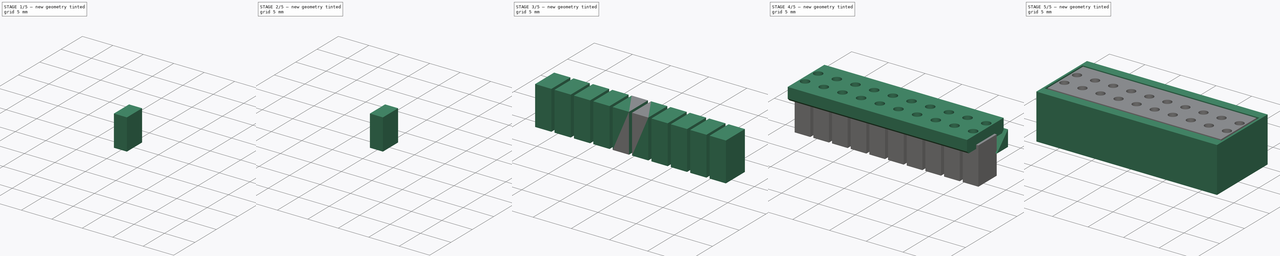
[diagram: build sequence overview — one tinted view per stage of 5, left to right]
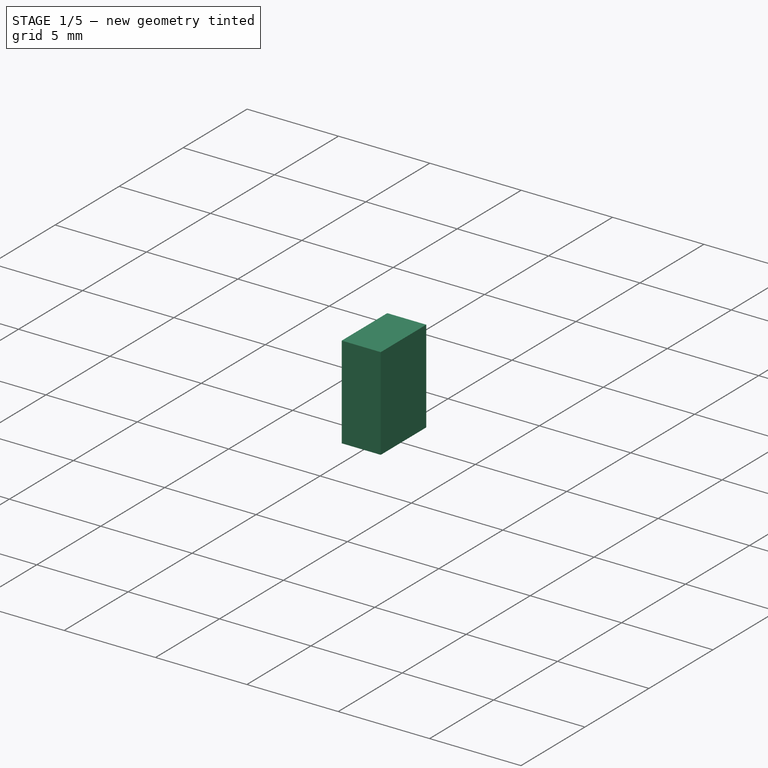
[diagram: stage 1 of 5 — iso view after this stage's code; geometry added in this stage tinted green]
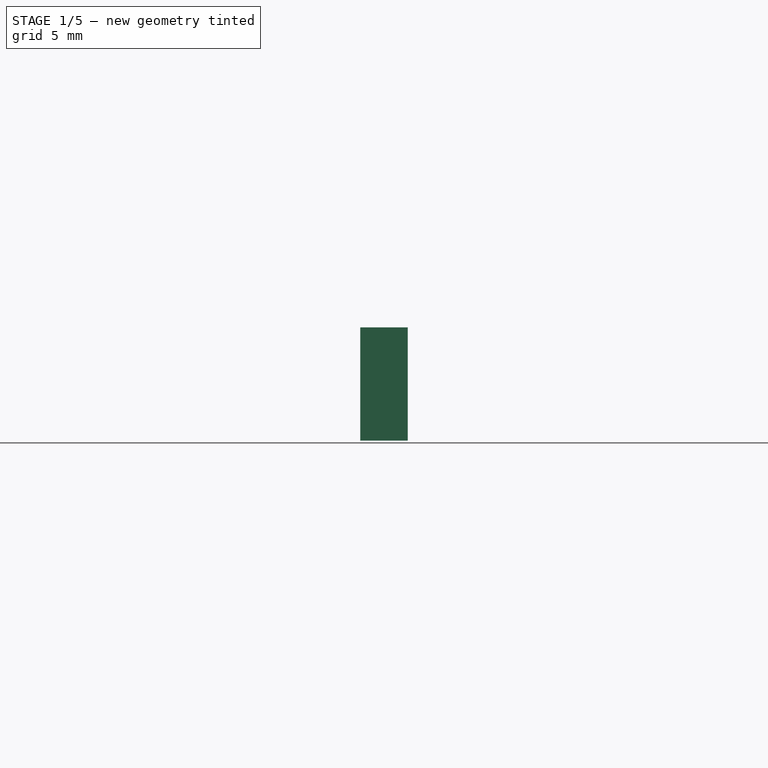
[diagram: stage 1 of 5 — front view after this stage's code; geometry added in this stage tinted green]
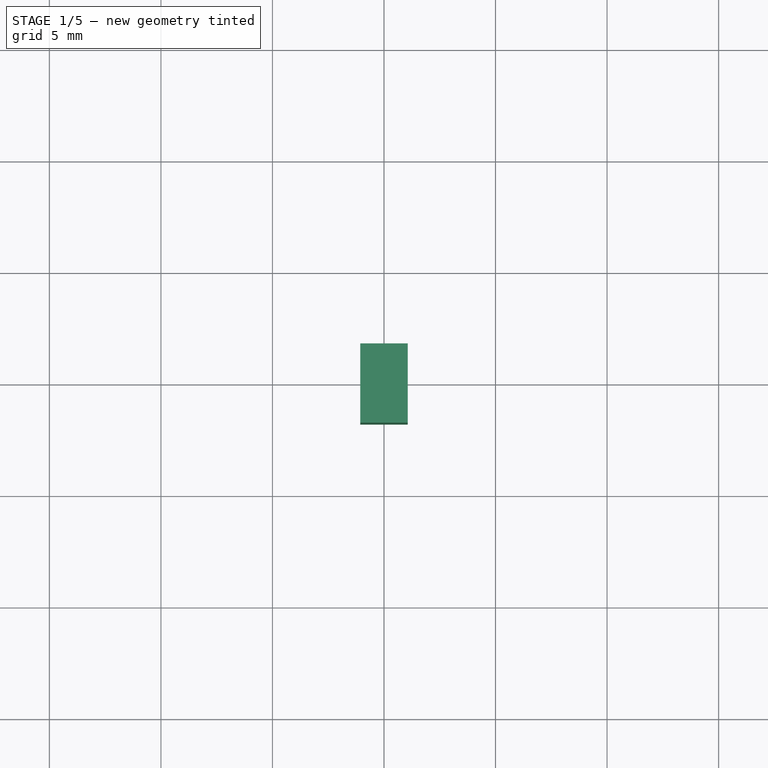
[diagram: stage 1 of 5 — top view after this stage's code; geometry added in this stage tinted green]
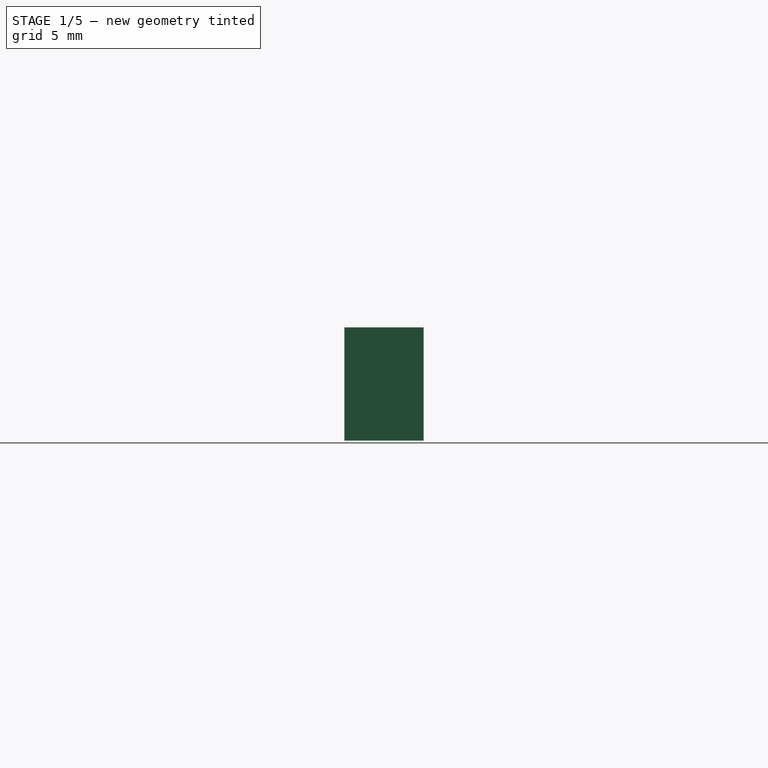
[diagram: stage 1 of 5 — right view after this stage's code; geometry added in this stage tinted green]
FCSTD DOCUMENT  (FreeCAD 0.18.4R)
Label: 10-seg-led-graph
License: All rights reserved
LicenseURL: http://en.wikipedia.org/wiki/All_rights_reserved
objects: Sketcher::SketchObject×15, PartDesign::Pad×15, PartDesign::Body×15, Part::Cut×3, Part::MultiFuse×1
note: 64 computed .brp shape members not serialized (recipe doc carries the construction recipe); baked Part::Feature solids carry a one-line shape summary decoded from their .brp

FEATURE [PartDesign::Body] Body010  label="LED005"
  Group = -> [Sketch010,Pad010]
  Origin = -> Origin010
  Placement = pos=(-6.35,0,0) rot=(0,0,1;0rad)
  Tip = -> Pad010
FEATURE [Sketcher::SketchObject] Sketch011
  MapMode = 5
  Support = -> [XY_Plane011]
  sketch-geometry (4):
    g0: LineSegment StartX=-1.0668 StartY=1.778 StartZ=0 EndX=1.0668 EndY=1.778 EndZ=0
    g1: LineSegment StartX=1.0668 StartY=1.778 StartZ=0 EndX=1.0668 EndY=-1.778 EndZ=0
    g2: LineSegment StartX=1.0668 StartY=-1.778 StartZ=0 EndX=-1.0668 EndY=-1.778 EndZ=0
    g3: LineSegment StartX=-1.0668 StartY=-1.778 StartZ=0 EndX=-1.0668 EndY=1.778 EndZ=0
  constraints (10):
    c: Coincident(g0,g1)
    c: Coincident(g1,g2)
    c: Coincident(g2,g3)
    c: Coincident(g3,g0)
    c: Horizontal(g2)
    c: Vertical(g1)
    c: DistanceX(g0,g0) = 2.1336
    c: DistanceY(g3,g3) = 3.556
    c: Symmetric(g0,g0,g-2)
    c: Symmetric(g0,g2,g-1)
FEATURE [PartDesign::Pad] Pad011
  Length = 5.08
  Length2 = 99.9998
  Profile = -> Sketch011
  Type = 0
FEATURE [PartDesign::Body] Body011  label="LED006"
  Group = -> [Sketch011,Pad011]
  Origin = -> Origin011
  Placement = pos=(-8.89,0,0) rot=(0,0,1;0rad)
  Tip = -> Pad011
FEATURE [Sketcher::SketchObject] Sketch012
  MapMode = 5
  Support = -> [XY_Plane012]
  sketch-geometry (4):
    g0: LineSegment StartX=-1.0668 StartY=1.778 StartZ=0 EndX=1.0668 EndY=1.778 EndZ=0
    g1: LineSegment StartX=1.0668 StartY=1.778 StartZ=0 EndX=1.0668 EndY=-1.778 EndZ=0
    g2: LineSegment StartX=1.0668 StartY=-1.778 StartZ=0 EndX=-1.0668 EndY=-1.778 EndZ=0
    g3: LineSegment StartX=-1.0668 StartY=-1.778 StartZ=0 EndX=-1.0668 EndY=1.778 EndZ=0
  constraints (10):
    c: Coincident(g0,g1)
    c: Coincident(g1,g2)
    c: Coincident(g2,g3)
    c: Coincident(g3,g0)
    c: Horizontal(g2)
    c: Vertical(g1)
    c: DistanceX(g0,g0) = 2.1336
    c: DistanceY(g3,g3) = 3.556
    c: Symmetric(g0,g0,g-2)
    c: Symmetric(g0,g2,g-1)
FEATURE [PartDesign::Pad] Pad012
  Length = 5.08
  Length2 = 99.9998
  Profile = -> Sketch012
  Type = 0
FEATURE [PartDesign::Body] Body012  label="LED007"
  Group = -> [Sketch012,Pad012]
  Origin = -> Origin012
  Placement = pos=(8.89,0,0) rot=(0,0,1;0rad)
  Tip = -> Pad012
FEATURE [Sketcher::SketchObject] Sketch013
  MapMode = 5
  Support = -> [XY_Plane013]
  sketch-geometry (4):
    g0: LineSegment StartX=-1.0668 StartY=1.778 StartZ=0 EndX=1.0668 EndY=1.778 EndZ=0
    g1: LineSegment StartX=1.0668 StartY=1.778 StartZ=0 EndX=1.0668 EndY=-1.778 EndZ=0
    g2: LineSegment StartX=1.0668 StartY=-1.778 StartZ=0 EndX=-1.0668 EndY=-1.778 EndZ=0
    g3: LineSegment StartX=-1.0668 StartY=-1.778 StartZ=0 EndX=-1.0668 EndY=1.778 EndZ=0
  constraints (10):
    c: Coincident(g0,g1)
    c: Coincident(g1,g2)
    c: Coincident(g2,g3)
    c: Coincident(g3,g0)
    c: Horizontal(g2)
    c: Vertical(g1)
    c: DistanceX(g0,g0) = 2.1336
    c: DistanceY(g3,g3) = 3.556
    c: Symmetric(g0,g0,g-2)
    c: Symmetric(g0,g2,g-1)
FEATURE [PartDesign::Pad] Pad013
  Length = 5.08
  Length2 = 99.9998
  Profile = -> Sketch013
  Type = 0
FEATURE [PartDesign::Body] Body013  label="LED008"
  Group = -> [Sketch013,Pad013]
  Origin = -> Origin013
  Placement = pos=(-11.43,0,0) rot=(0,0,1;0rad)
  Tip = -> Pad013
FEATURE [Sketcher::SketchObject] Sketch014
  MapMode = 5
  Support = -> [XY_Plane014]
  sketch-geometry (4):
    g0: LineSegment StartX=-1.0668 StartY=1.778 StartZ=0 EndX=1.0668 EndY=1.778 EndZ=0
    g1: LineSegment StartX=1.0668 StartY=1.778 StartZ=0 EndX=1.0668 EndY=-1.778 EndZ=0
    g2: LineSegment StartX=1.0668 StartY=-1.778 StartZ=0 EndX=-1.0668 EndY=-1.778 EndZ=0
    g3: LineSegment StartX=-1.0668 StartY=-1.778 StartZ=0 EndX=-1.0668 EndY=1.778 EndZ=0
  constraints (10):
    c: Coincident(g0,g1)
    c: Coincident(g1,g2)
    c: Coincident(g2,g3)
    c: Coincident(g3,g0)
    c: Horizontal(g2)
    c: Vertical(g1)
    c: DistanceX(g0,g0) = 2.1336
    c: DistanceY(g3,g3) = 3.556
    c: Symmetric(g0,g0,g-2)
    c: Symmetric(g0,g2,g-1)
FEATURE [PartDesign::Pad] Pad014
  Length = 5.08
  Length2 = 99.9998
  Profile = -> Sketch014
  Type = 0
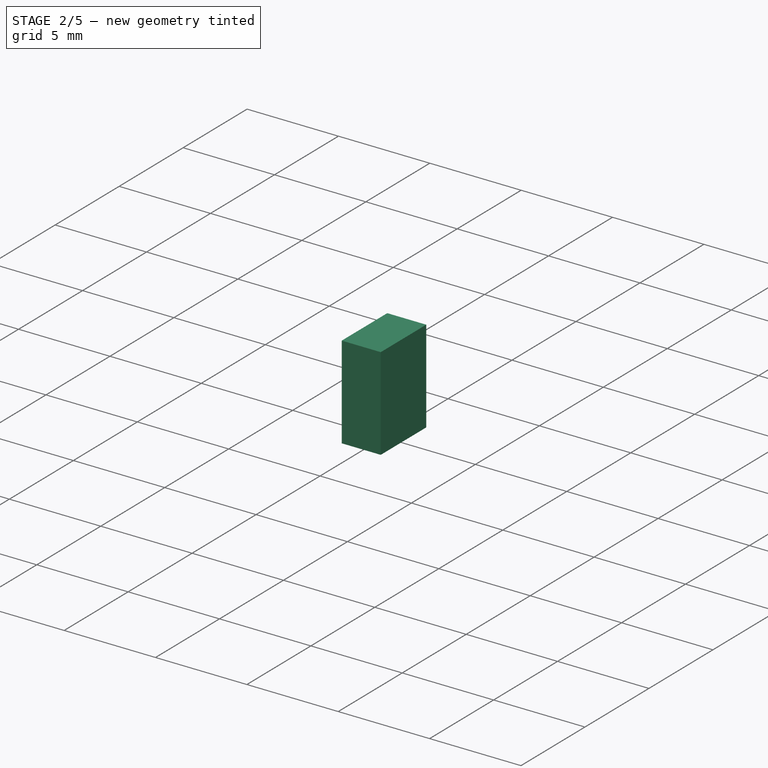
[diagram: stage 2 of 5 — iso view after this stage's code; geometry added in this stage tinted green]
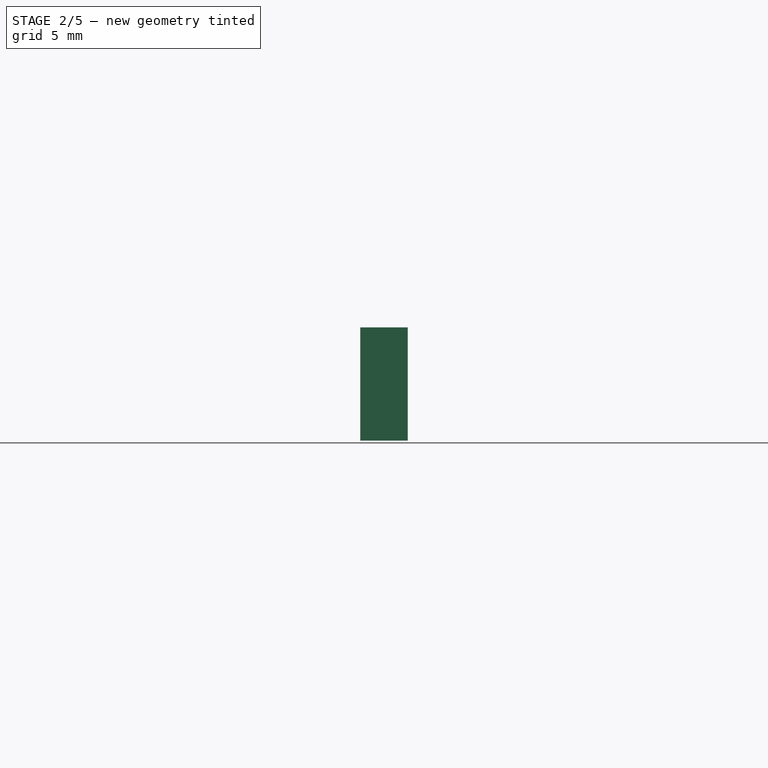
[diagram: stage 2 of 5 — front view after this stage's code; geometry added in this stage tinted green]
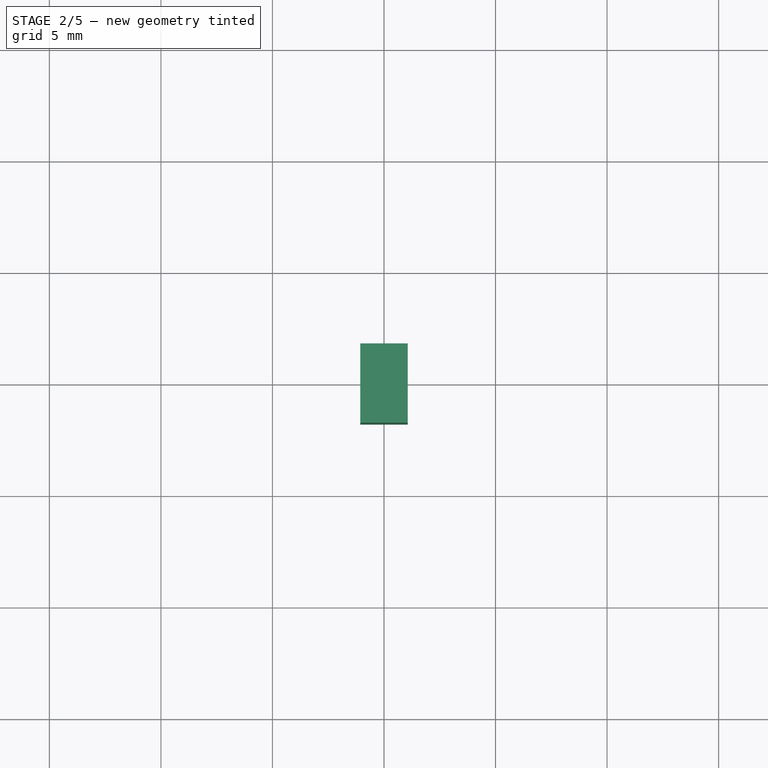
[diagram: stage 2 of 5 — top view after this stage's code; geometry added in this stage tinted green]
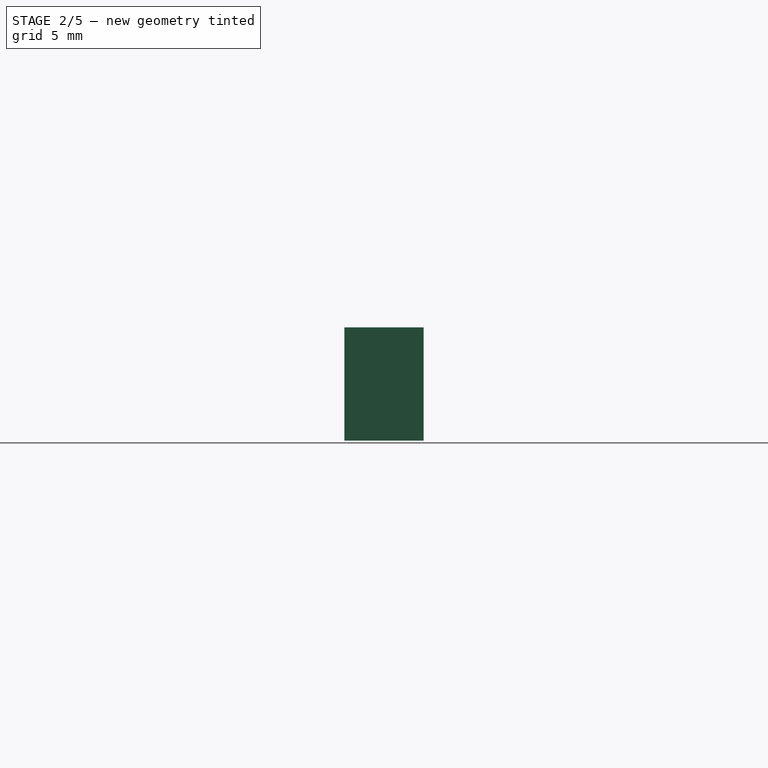
[diagram: stage 2 of 5 — right view after this stage's code; geometry added in this stage tinted green]
FEATURE [PartDesign::Body] Body006  label="LED001"
  Group = -> [Sketch006,Pad006]
  Origin = -> Origin006
  Placement = pos=(-1.27,0,0) rot=(0,0,1;0rad)
  Tip = -> Pad006
FEATURE [Sketcher::SketchObject] Sketch007
  MapMode = 5
  Support = -> [XY_Plane007]
  sketch-geometry (4):
    g0: LineSegment StartX=-1.0668 StartY=1.778 StartZ=0 EndX=1.0668 EndY=1.778 EndZ=0
    g1: LineSegment StartX=1.0668 StartY=1.778 StartZ=0 EndX=1.0668 EndY=-1.778 EndZ=0
    g2: LineSegment StartX=1.0668 StartY=-1.778 StartZ=0 EndX=-1.0668 EndY=-1.778 EndZ=0
    g3: LineSegment StartX=-1.0668 StartY=-1.778 StartZ=0 EndX=-1.0668 EndY=1.778 EndZ=0
  constraints (10):
    c: Coincident(g0,g1)
    c: Coincident(g1,g2)
    c: Coincident(g2,g3)
    c: Coincident(g3,g0)
    c: Horizontal(g2)
    c: Vertical(g1)
    c: DistanceX(g0,g0) = 2.1336
    c: DistanceY(g3,g3) = 3.556
    c: Symmetric(g0,g0,g-2)
    c: Symmetric(g0,g2,g-1)
FEATURE [PartDesign::Pad] Pad007
  Length = 5.08
  Length2 = 99.9998
  Profile = -> Sketch007
  Type = 0
FEATURE [PartDesign::Body] Body007  label="LED002"
  Group = -> [Sketch007,Pad007]
  Origin = -> Origin007
  Placement = pos=(3.81,0,0) rot=(0,0,1;0rad)
  Tip = -> Pad007
FEATURE [Sketcher::SketchObject] Sketch008
  MapMode = 5
  Support = -> [XY_Plane008]
  sketch-geometry (4):
    g0: LineSegment StartX=-1.0668 StartY=1.778 StartZ=0 EndX=1.0668 EndY=1.778 EndZ=0
    g1: LineSegment StartX=1.0668 StartY=1.778 StartZ=0 EndX=1.0668 EndY=-1.778 EndZ=0
    g2: LineSegment StartX=1.0668 StartY=-1.778 StartZ=0 EndX=-1.0668 EndY=-1.778 EndZ=0
    g3: LineSegment StartX=-1.0668 StartY=-1.778 StartZ=0 EndX=-1.0668 EndY=1.778 EndZ=0
  constraints (10):
    c: Coincident(g0,g1)
    c: Coincident(g1,g2)
    c: Coincident(g2,g3)
    c: Coincident(g3,g0)
    c: Horizontal(g2)
    c: Vertical(g1)
    c: DistanceX(g0,g0) = 2.1336
    c: DistanceY(g3,g3) = 3.556
    c: Symmetric(g0,g0,g-2)
    c: Symmetric(g0,g2,g-1)
FEATURE [PartDesign::Pad] Pad008
  Length = 5.08
  Length2 = 99.9998
  Profile = -> Sketch008
  Type = 0
FEATURE [PartDesign::Body] Body008  label="LED003"
  Group = -> [Sketch008,Pad008]
  Origin = -> Origin008
  Placement = pos=(-3.81,0,0) rot=(0,0,1;0rad)
  Tip = -> Pad008
FEATURE [Sketcher::SketchObject] Sketch009
  MapMode = 5
  Support = -> [XY_Plane009]
  sketch-geometry (4):
    g0: LineSegment StartX=-1.0668 StartY=1.778 StartZ=0 EndX=1.0668 EndY=1.778 EndZ=0
    g1: LineSegment StartX=1.0668 StartY=1.778 StartZ=0 EndX=1.0668 EndY=-1.778 EndZ=0
    g2: LineSegment StartX=1.0668 StartY=-1.778 StartZ=0 EndX=-1.0668 EndY=-1.778 EndZ=0
    g3: LineSegment StartX=-1.0668 StartY=-1.778 StartZ=0 EndX=-1.0668 EndY=1.778 EndZ=0
  constraints (10):
    c: Coincident(g0,g1)
    c: Coincident(g1,g2)
    c: Coincident(g2,g3)
    c: Coincident(g3,g0)
    c: Horizontal(g2)
    c: Vertical(g1)
    c: DistanceX(g0,g0) = 2.1336
    c: DistanceY(g3,g3) = 3.556
    c: Symmetric(g0,g0,g-2)
    c: Symmetric(g0,g2,g-1)
FEATURE [PartDesign::Pad] Pad009
  Length = 5.08
  Length2 = 99.9998
  Profile = -> Sketch009
  Type = 0
FEATURE [PartDesign::Body] Body009  label="LED004"
  Group = -> [Sketch009,Pad009]
  Origin = -> Origin009
  Placement = pos=(6.35,0,0) rot=(0,0,1;0rad)
  Tip = -> Pad009
FEATURE [Sketcher::SketchObject] Sketch010
  MapMode = 5
  Support = -> [XY_Plane010]
  sketch-geometry (4):
    g0: LineSegment StartX=-1.0668 StartY=1.778 StartZ=0 EndX=1.0668 EndY=1.778 EndZ=0
    g1: LineSegment StartX=1.0668 StartY=1.778 StartZ=0 EndX=1.0668 EndY=-1.778 EndZ=0
    g2: LineSegment StartX=1.0668 StartY=-1.778 StartZ=0 EndX=-1.0668 EndY=-1.778 EndZ=0
    g3: LineSegment StartX=-1.0668 StartY=-1.778 StartZ=0 EndX=-1.0668 EndY=1.778 EndZ=0
  constraints (10):
    c: Coincident(g0,g1)
    c: Coincident(g1,g2)
    c: Coincident(g2,g3)
    c: Coincident(g3,g0)
    c: Horizontal(g2)
    c: Vertical(g1)
    c: DistanceX(g0,g0) = 2.1336
    c: DistanceY(g3,g3) = 3.556
    c: Symmetric(g0,g0,g-2)
    c: Symmetric(g0,g2,g-1)
FEATURE [PartDesign::Pad] Pad010
  Length = 5.08
  Length2 = 99.9998
  Profile = -> Sketch010
  Type = 0
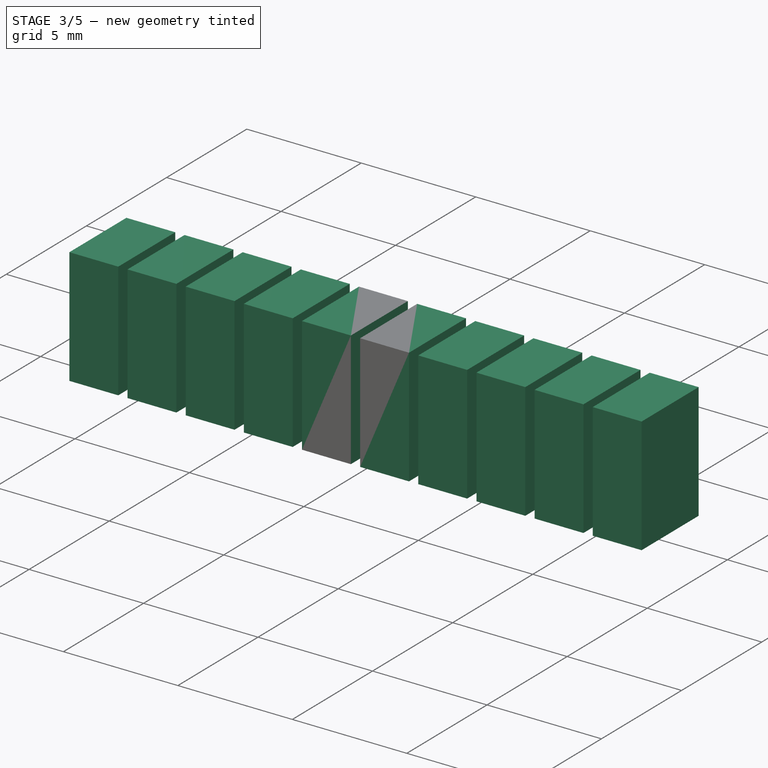
[diagram: stage 3 of 5 — iso view after this stage's code; geometry added in this stage tinted green]
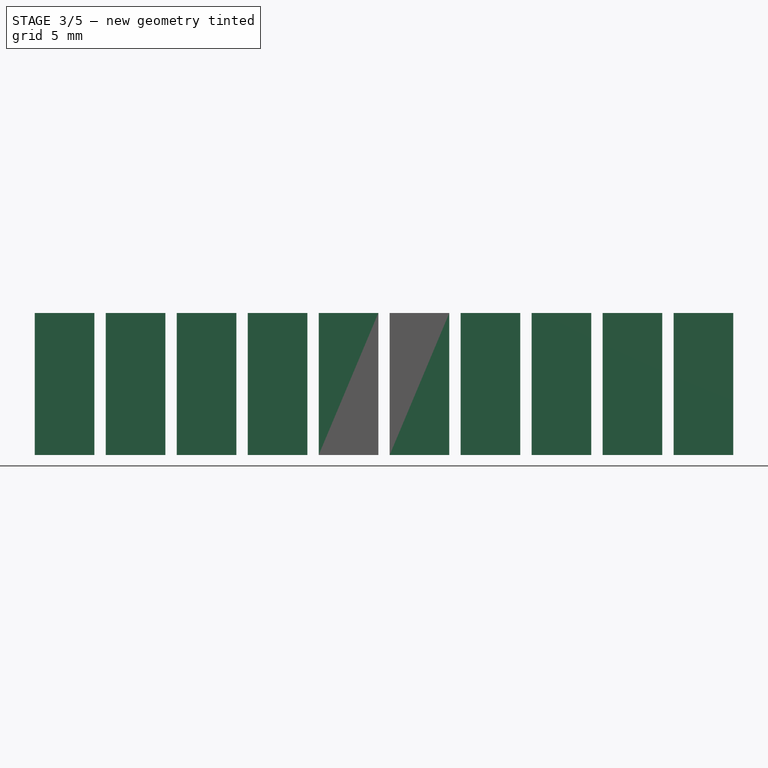
[diagram: stage 3 of 5 — front view after this stage's code; geometry added in this stage tinted green]
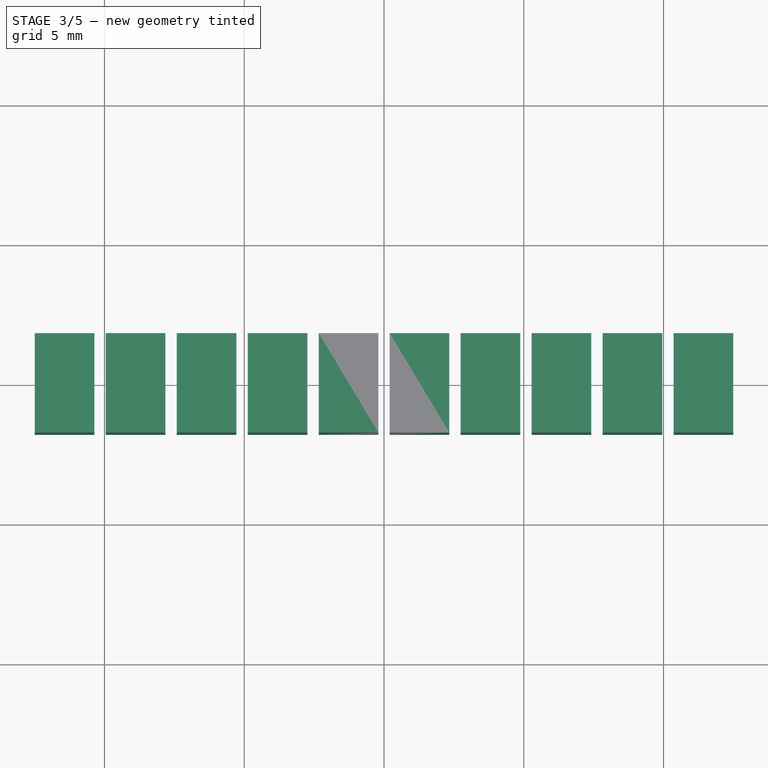
[diagram: stage 3 of 5 — top view after this stage's code; geometry added in this stage tinted green]
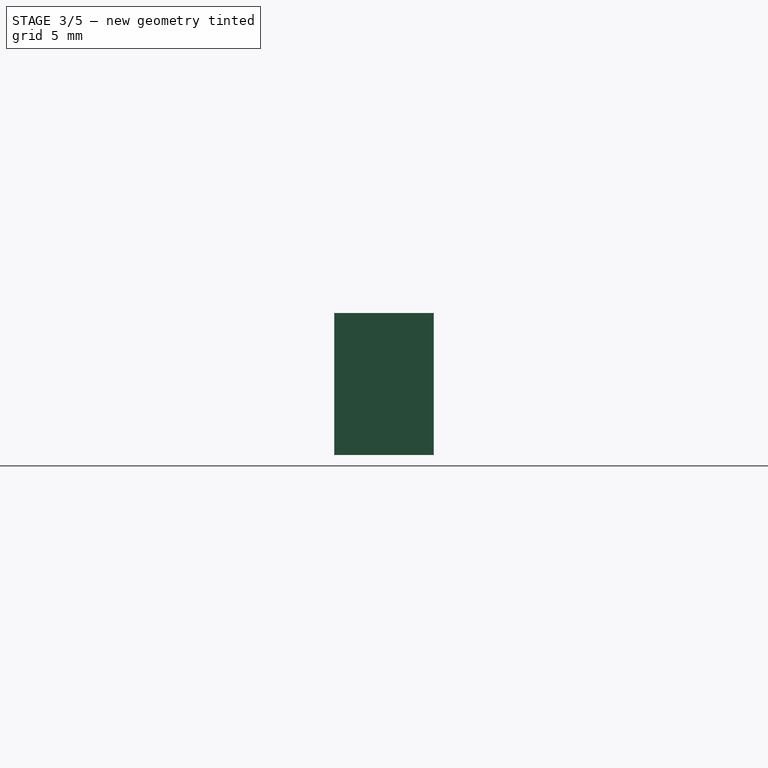
[diagram: stage 3 of 5 — right view after this stage's code; geometry added in this stage tinted green]
FEATURE [Sketcher::SketchObject] Sketch005
  MapMode = 5
  Support = -> [XY_Plane005]
  sketch-geometry (4):
    g0: LineSegment StartX=-1.0668 StartY=1.778 StartZ=0 EndX=1.0668 EndY=1.778 EndZ=0
    g1: LineSegment StartX=1.0668 StartY=1.778 StartZ=0 EndX=1.0668 EndY=-1.778 EndZ=0
    g2: LineSegment StartX=1.0668 StartY=-1.778 StartZ=0 EndX=-1.0668 EndY=-1.778 EndZ=0
    g3: LineSegment StartX=-1.0668 StartY=-1.778 StartZ=0 EndX=-1.0668 EndY=1.778 EndZ=0
  constraints (10):
    c: Coincident(g0,g1)
    c: Coincident(g1,g2)
    c: Coincident(g2,g3)
    c: Coincident(g3,g0)
    c: Horizontal(g2)
    c: Vertical(g1)
    c: DistanceX(g0,g0) = 2.1336
    c: DistanceY(g3,g3) = 3.556
    c: Symmetric(g0,g0,g-2)
    c: Symmetric(g0,g2,g-1)
FEATURE [PartDesign::Pad] Pad005
  Length = 5.08
  Length2 = 99.9998
  Profile = -> Sketch005
  Type = 0
FEATURE [PartDesign::Body] Body005  label="LED"
  Group = -> [Sketch005,Pad005]
  Origin = -> Origin005
  Placement = pos=(1.27,0,0) rot=(0,0,1;0rad)
  Tip = -> Pad005
FEATURE [Sketcher::SketchObject] Sketch006
  MapMode = 5
  Support = -> [XY_Plane006]
  sketch-geometry (4):
    g0: LineSegment StartX=-1.0668 StartY=1.778 StartZ=0 EndX=1.0668 EndY=1.778 EndZ=0
    g1: LineSegment StartX=1.0668 StartY=1.778 StartZ=0 EndX=1.0668 EndY=-1.778 EndZ=0
    g2: LineSegment StartX=1.0668 StartY=-1.778 StartZ=0 EndX=-1.0668 EndY=-1.778 EndZ=0
    g3: LineSegment StartX=-1.0668 StartY=-1.778 StartZ=0 EndX=-1.0668 EndY=1.778 EndZ=0
  constraints (10):
    c: Coincident(g0,g1)
    c: Coincident(g1,g2)
    c: Coincident(g2,g3)
    c: Coincident(g3,g0)
    c: Horizontal(g2)
    c: Vertical(g1)
    c: DistanceX(g0,g0) = 2.1336
    c: DistanceY(g3,g3) = 3.556
    c: Symmetric(g0,g0,g-2)
    c: Symmetric(g0,g2,g-1)
FEATURE [PartDesign::Pad] Pad006
  Length = 5.08
  Length2 = 99.9998
  Profile = -> Sketch006
  Type = 0
FEATURE [PartDesign::Body] Body014  label="LED009"
  Group = -> [Sketch014,Pad014]
  Origin = -> Origin014
  Placement = pos=(11.43,0,0) rot=(0,0,1;0rad)
  Tip = -> Pad014
FEATURE [Part::MultiFuse] Fusion  label="Leds"
  Shapes = -> [Body005,Body008,Body007,Body006,Body009,Body011,Body010,Body013,Body012,Body014]
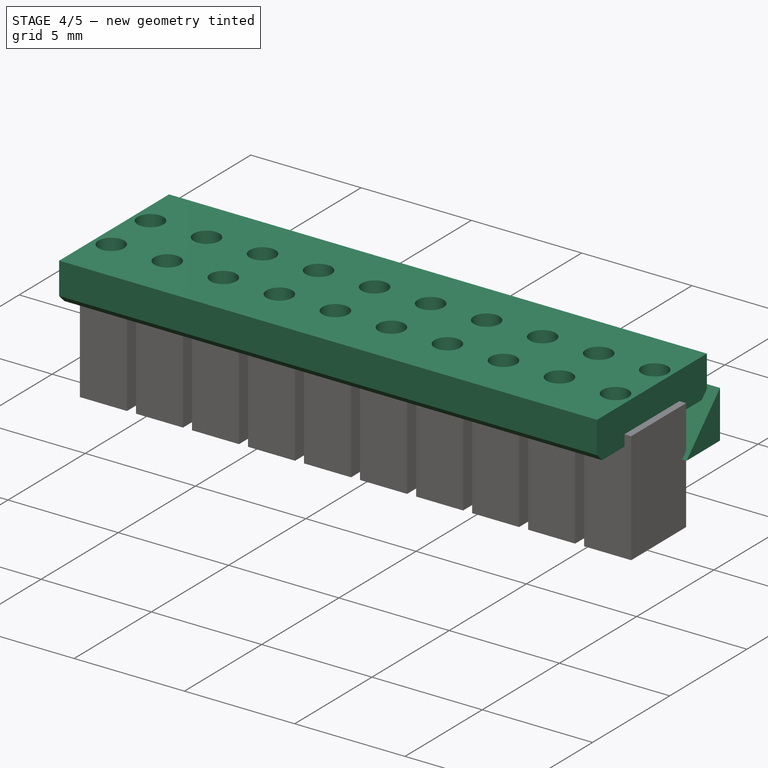
[diagram: stage 4 of 5 — iso view after this stage's code; geometry added in this stage tinted green]
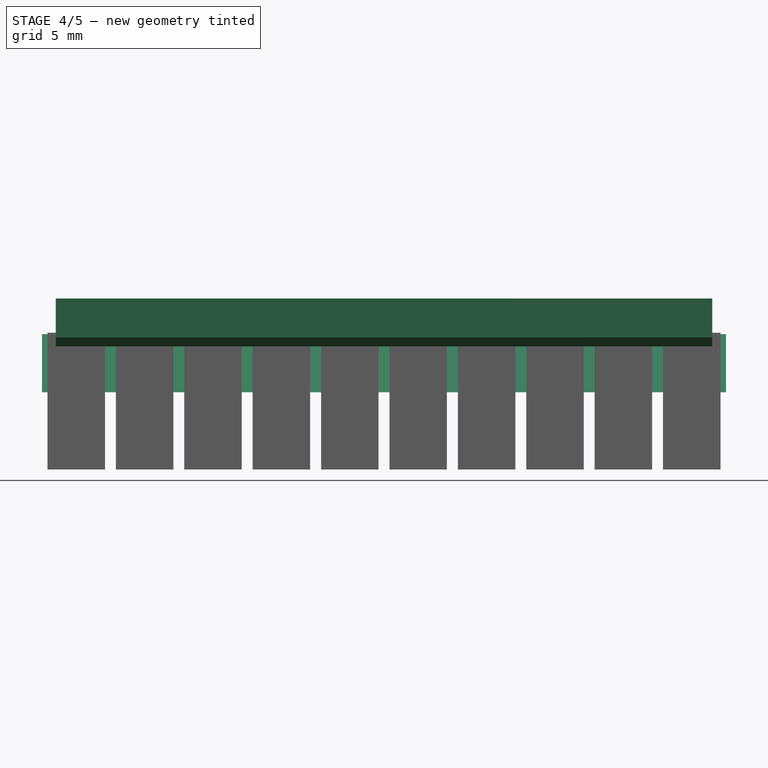
[diagram: stage 4 of 5 — front view after this stage's code; geometry added in this stage tinted green]
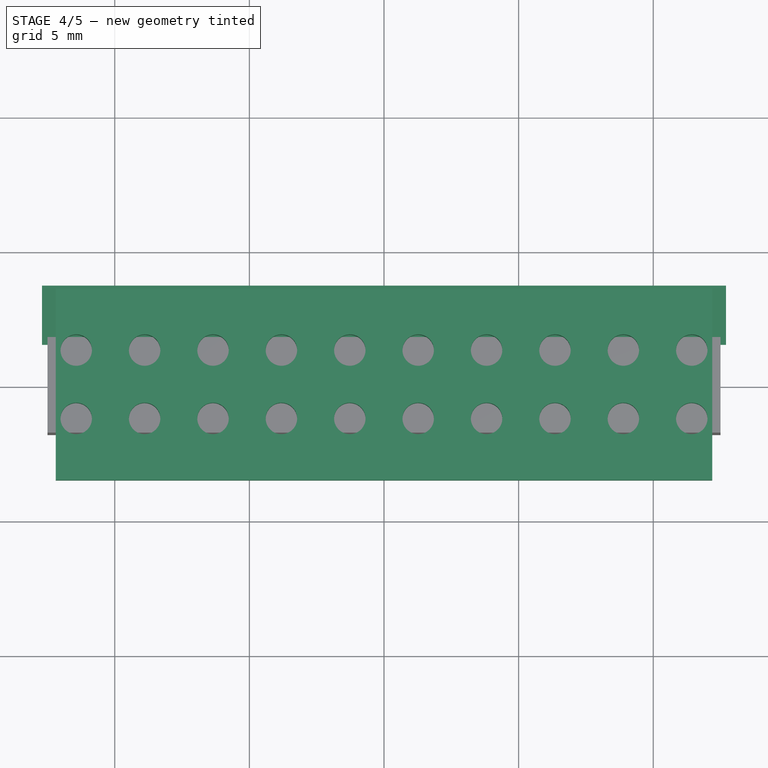
[diagram: stage 4 of 5 — top view after this stage's code; geometry added in this stage tinted green]
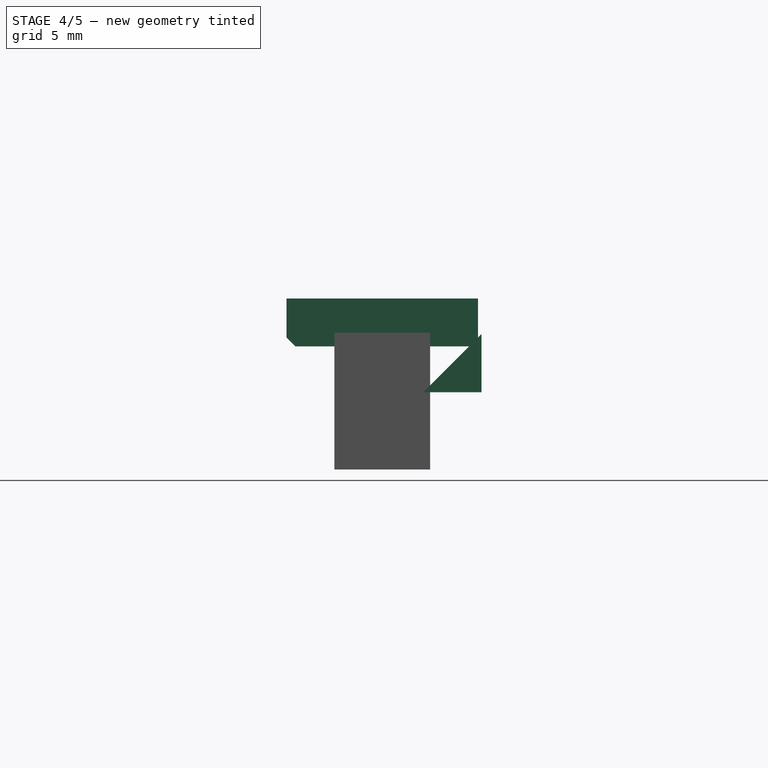
[diagram: stage 4 of 5 — right view after this stage's code; geometry added in this stage tinted green]
FEATURE [Sketcher::SketchObject] Sketch002
  AttachmentOffset = pos=(0,0,4.572) rot=(0,0,1;0rad)
  MapMode = 5
  Placement = pos=(0,0,4.572) rot=(0,0,1;0rad)
  Support = -> [XY_Plane002]
  sketch-geometry (56):
    g0: LineSegment StartX=-12.192 StartY=3.556 StartZ=0 EndX=-11.43 EndY=3.556 EndZ=0
    g1: LineSegment StartX=12.192 StartY=3.556 StartZ=0 EndX=12.192 EndY=-3.556 EndZ=0
    g2: LineSegment StartX=12.192 StartY=-3.556 StartZ=0 EndX=11.43 EndY=-3.556 EndZ=0
    g3: LineSegment StartX=-12.192 StartY=-3.556 StartZ=0 EndX=-12.192 EndY=3.556 EndZ=0
    g4: LineSegment [constr] StartX=-11.43 StartY=3.556 StartZ=0 EndX=-11.43 EndY=-3.556 EndZ=0
    g5: LineSegment [constr] StartX=-8.89 StartY=3.556 StartZ=0 EndX=-8.89 EndY=-3.556 EndZ=0
    g6: LineSegment [constr] StartX=-6.35 StartY=3.556 StartZ=0 EndX=-6.35 EndY=-3.556 EndZ=0
    g7: LineSegment [constr] StartX=-3.81 StartY=3.556 StartZ=0 EndX=-3.81 EndY=-3.556 EndZ=0
    g8: LineSegment [constr] StartX=-1.27 StartY=3.556 StartZ=0 EndX=-1.27 EndY=-3.556 EndZ=0
    g9: LineSegment [constr] StartX=1.27 StartY=3.556 StartZ=0 EndX=1.27 EndY=-3.556 EndZ=0
    g10: LineSegment [constr] StartX=3.81 StartY=3.556 StartZ=0 EndX=3.81 EndY=-3.556 EndZ=0
    g11: LineSegment [constr] StartX=6.35 StartY=3.556 StartZ=0 EndX=6.35 EndY=-3.556 EndZ=0
    g12: LineSegment [constr] StartX=8.89 StartY=3.556 StartZ=0 EndX=8.89 EndY=-3.556 EndZ=0
    g13: LineSegment [constr] StartX=11.43 StartY=3.556 StartZ=0 EndX=11.43 EndY=-3.556 EndZ=0
    g14: LineSegment StartX=-11.43 StartY=3.556 StartZ=0 EndX=-8.89 EndY=3.556 EndZ=0
    g15: LineSegment StartX=-8.89 StartY=3.556 StartZ=0 EndX=-6.35 EndY=3.556 EndZ=0
    g16: LineSegment StartX=-6.35 StartY=3.556 StartZ=0 EndX=-3.81 EndY=3.556 EndZ=0
    g17: LineSegment StartX=-3.81 StartY=3.556 StartZ=0 EndX=-1.27 EndY=3.556 EndZ=0
    g18: LineSegment StartX=-1.27 StartY=3.556 StartZ=0 EndX=1.27 EndY=3.556 EndZ=0
    g19: LineSegment StartX=3.81 StartY=3.556 StartZ=0 EndX=6.35 EndY=3.556 EndZ=0
    g20: LineSegment StartX=6.35 StartY=3.556 StartZ=0 EndX=8.89 EndY=3.556 EndZ=0
    g21: LineSegment StartX=11.43 StartY=3.556 StartZ=0 EndX=12.192 EndY=3.556 EndZ=0
    g22: LineSegment StartX=8.89 StartY=-3.556 StartZ=0 EndX=6.35 EndY=-3.556 EndZ=0
    g23: LineSegment StartX=6.35 StartY=-3.556 StartZ=0 EndX=3.81 EndY=-3.556 EndZ=0
    g24: LineSegment StartX=3.81 StartY=-3.556 StartZ=0 EndX=1.27 EndY=-3.556 EndZ=0
    g25: LineSegment StartX=1.27 StartY=-3.556 StartZ=0 EndX=-1.27 EndY=-3.556 EndZ=0
    g26: LineSegment StartX=-1.27 StartY=-3.556 StartZ=0 EndX=-3.81 EndY=-3.556 EndZ=0
    g27: LineSegment StartX=-3.81 StartY=-3.556 StartZ=0 EndX=-6.35 EndY=-3.556 EndZ=0
    g28: LineSegment StartX=-6.35 StartY=-3.556 StartZ=0 EndX=-8.89 EndY=-3.556 EndZ=0
    g29: LineSegment StartX=-8.89 StartY=-3.556 StartZ=0 EndX=-11.43 EndY=-3.556 EndZ=0
    g30: LineSegment StartX=-11.43 StartY=-3.556 StartZ=0 EndX=-12.192 EndY=-3.556 EndZ=0
    g31: LineSegment StartX=1.27 StartY=3.556 StartZ=0 EndX=3.81 EndY=3.556 EndZ=0
    g32: LineSegment StartX=8.89 StartY=3.556 StartZ=0 EndX=11.43 EndY=3.556 EndZ=0
    g33: LineSegment StartX=11.43 StartY=-3.556 StartZ=0 EndX=8.89 EndY=-3.556 EndZ=0
    g34: Circle CenterX=-11.43 CenterY=1.27 CenterZ=0 NormalX=0 NormalY=0 NormalZ=1 AngleXU=0 Radius=0.5842
    g35: Circle CenterX=-11.43 CenterY=-1.27 CenterZ=0 NormalX=0 NormalY=0 NormalZ=1 AngleXU=0 Radius=0.5842
    g36: Circle CenterX=-8.89 CenterY=-1.27 CenterZ=0 NormalX=0 NormalY=0 NormalZ=1 AngleXU=0 Radius=0.5842
    g37: Circle CenterX=-8.89 CenterY=1.27 CenterZ=0 NormalX=0 NormalY=0 NormalZ=1 AngleXU=0 Radius=0.5842
    g38: Circle CenterX=-6.35 CenterY=1.27 CenterZ=0 NormalX=0 NormalY=0 NormalZ=1 AngleXU=0 Radius=0.5842
    g39: Circle CenterX=-6.35 CenterY=-1.27 CenterZ=0 NormalX=0 NormalY=0 NormalZ=1 AngleXU=0 Radius=0.5842
    g40: Circle CenterX=-3.81 CenterY=1.27 CenterZ=0 NormalX=0 NormalY=0 NormalZ=1 AngleXU=0 Radius=0.5842
    g41: Circle CenterX=-3.81 CenterY=-1.27 CenterZ=0 NormalX=0 NormalY=0 NormalZ=1 AngleXU=0 Radius=0.5842
    g42: Circle CenterX=-1.27 CenterY=1.27 CenterZ=0 NormalX=0 NormalY=0 NormalZ=1 AngleXU=0 Radius=0.5842
    g43: Circle CenterX=-1.27 CenterY=-1.27 CenterZ=0 NormalX=0 NormalY=0 NormalZ=1 AngleXU=0 Radius=0.5842
    g44: Circle CenterX=1.27 CenterY=1.27 CenterZ=0 NormalX=0 NormalY=0 NormalZ=1 AngleXU=0 Radius=0.5842
    g45: Circle CenterX=1.27 CenterY=-1.27 CenterZ=0 NormalX=0 NormalY=0 NormalZ=1 AngleXU=0 Radius=0.5842
    g46: Circle CenterX=3.81 CenterY=1.27 CenterZ=0 NormalX=0 NormalY=0 NormalZ=1 AngleXU=0 Radius=0.5842
    g47: Circle CenterX=3.81 CenterY=-1.27 CenterZ=0 NormalX=0 NormalY=0 NormalZ=1 AngleXU=0 Radius=0.5842
    g48: Circle CenterX=6.35 CenterY=1.27 CenterZ=0 NormalX=0 NormalY=0 NormalZ=1 AngleXU=0 Radius=0.5842
    g49: Circle CenterX=6.35 CenterY=-1.27 CenterZ=0 NormalX=0 NormalY=0 NormalZ=1 AngleXU=0 Radius=0.5842
    g50: Circle CenterX=8.89 CenterY=1.27 CenterZ=0 NormalX=0 NormalY=0 NormalZ=1 AngleXU=0 Radius=0.5842
    g51: Circle CenterX=8.89 CenterY=-1.27 CenterZ=0 NormalX=0 NormalY=0 NormalZ=1 AngleXU=0 Radius=0.5842
    g52: Circle CenterX=11.43 CenterY=1.27 CenterZ=0 NormalX=0 NormalY=0 NormalZ=1 AngleXU=0 Radius=0.5842
    g53: Circle CenterX=11.43 CenterY=-1.27 CenterZ=0 NormalX=0 NormalY=0 NormalZ=1 AngleXU=0 Radius=0.5842
    g54: LineSegment [constr] StartX=-11.43 StartY=1.27 StartZ=0 EndX=12.192 EndY=1.27 EndZ=0
    g55: LineSegment [constr] StartX=-11.43 StartY=-1.27 StartZ=0 EndX=12.192 EndY=-1.27 EndZ=0
  constraints (154):
    c: Coincident(g21,g1)
    c: Coincident(g1,g2)
    c: Coincident(g30,g3)
    c: Coincident(g3,g0)
    c: Vertical(g1)
    c: DistanceX(g0,g21) = 24.384
    c: Symmetric(g0,g21,g-2)
    c: DistanceY(g3,g3) = 7.112
    c: Symmetric(g0,g30,g-1)
    c: Vertical(g5)
    c: Vertical(g6)
    c: Vertical(g7)
    c: Vertical(g8)
    c: Vertical(g9)
    c: Vertical(g10)
    c: Vertical(g11)
    c: Vertical(g12)
    c: Vertical(g13)
    c: Equal(g4,g5)
    c: Equal(g5,g6)
    c: Equal(g6,g7)
    c: Equal(g7,g8)
    c: Equal(g8,g9)
    c: Equal(g9,g10)
    c: Equal(g10,g11)
    c: Equal(g11,g12)
    c: Equal(g12,g13)
    c: Symmetric(g4,g4,g-1)
    c: Coincident(g0,g4)
    c: Coincident(g5,g14)
    c: Coincident(g5,g15)
    c: Coincident(g6,g15)
    c: Coincident(g6,g16)
    c: Coincident(g7,g16)
    c: Coincident(g7,g17)
    c: Coincident(g8,g17)
    c: Coincident(g8,g18)
    c: Coincident(g9,g18)
    c: Coincident(g9,g31)
    c: Coincident(g13,g21)
    c: Coincident(g13,g32)
    c: Coincident(g12,g20)
    c: Coincident(g12,g32)
    c: Coincident(g11,g19)
    c: Coincident(g11,g20)
    c: Coincident(g10,g19)
    c: Coincident(g10,g31)
    c: Coincident(g2,g13)
    c: Coincident(g12,g22)
    c: Coincident(g12,g33)
    c: Coincident(g11,g22)
    c: Coincident(g11,g23)
    c: Coincident(g10,g23)
    c: Coincident(g10,g24)
    c: Coincident(g9,g24)
    c: Coincident(g9,g25)
    c: Coincident(g8,g25)
    c: Coincident(g8,g26)
    c: Coincident(g7,g26)
    c: Coincident(g7,g27)
    c: Coincident(g4,g29)
    c: Coincident(g4,g30)
    c: Coincident(g5,g28)
    c: Coincident(g5,g29)
    c: Coincident(g6,g27)
    c: Coincident(g6,g28)
    c: DistanceX(g14,g14) = 2.54
    c: Equal(g17,g16)
    c: Equal(g16,g15)
    c: Equal(g15,g14)
    c: Equal(g14,g18)
    c: Equal(g18,g32)
    c: Equal(g32,g20)
    c: Equal(g20,g19)
    c: Equal(g19,g31)
    c: Equal(g21,g0)
    c: Coincident(g0,g14)
    c: Coincident(g33,g2)
    c: Horizontal(g2)
    c: Horizontal(g33)
    c: Horizontal(g22)
    c: Horizontal(g23)
    c: Horizontal(g24)
    c: Horizontal(g25)
    c: Horizontal(g26)
    c: Horizontal(g27)
    c: Horizontal(g28)
    c: Horizontal(g29)
    c: Horizontal(g30)
    c: PointOnObject(g34,g4)
    c: PointOnObject(g36,g5)
    c: PointOnObject(g37,g5)
    c: PointOnObject(g38,g6)
    c: PointOnObject(g39,g6)
    c: PointOnObject(g40,g7)
    c: PointOnObject(g41,g7)
    c: PointOnObject(g42,g8)
    c: PointOnObject(g43,g8)
    c: PointOnObject(g45,g9)
    c: PointOnObject(g46,g10)
    c: PointOnObject(g47,g10)
    c: PointOnObject(g48,g11)
    c: PointOnObject(g49,g11)
    c: PointOnObject(g50,g12)
    c: PointOnObject(g51,g12)
    c: PointOnObject(g52,g13)
    c: PointOnObject(g53,g13)
    c: Equal(g34,g35)
    c: Equal(g35,g36)
    c: Equal(g36,g37)
    c: Equal(g37,g38)
    c: Equal(g38,g39)
    c: Equal(g39,g40)
    c: Equal(g40,g41)
    c: Equal(g41,g42)
    c: Equal(g42,g43)
    c: Equal(g43,g44)
    c: Equal(g44,g45)
    c: Equal(g45,g46)
    c: Equal(g46,g47)
    c: Equal(g47,g48)
    c: Equal(g48,g49)
    c: Equal(g49,g50)
    c: Equal(g50,g51)
    c: Equal(g51,g52)
    c: Equal(g52,g53)
    c: DistanceY(g35,g34) = 2.54
    c: Symmetric(g34,g35,g-1)
    c: Coincident(g54,g34)
    c: Horizontal(g54)
    c: Coincident(g55,g35)
    c: PointOnObject(g55,g1)
    c: Horizontal(g55)
    c: PointOnObject(g37,g54)
    c: PointOnObject(g38,g54)
    c: PointOnObject(g36,g55)
    c: PointOnObject(g39,g55)
    c: PointOnObject(g40,g54)
    c: PointOnObject(g41,g55)
    c: PointOnObject(g43,g55)
    c: PointOnObject(g42,g54)
    c: PointOnObject(g44,g54)
    c: PointOnObject(g45,g55)
    c: Radius(g34) = 0.5842
    c: PointOnObject(g47,g55)
    c: PointOnObject(g46,g54)
    c: PointOnObject(g48,g54)
    c: PointOnObject(g49,g55)
    c: PointOnObject(g51,g55)
    c: PointOnObject(g50,g54)
    c: PointOnObject(g52,g54)
    c: PointOnObject(g53,g55)
    c: PointOnObject(g54,g1)
    c: PointOnObject(g44,g9)
FEATURE [PartDesign::Pad] Pad002
  Length = 1.778
  Length2 = 99.9998
  Profile = -> Sketch002
  Type = 0
FEATURE [PartDesign::Body] Body002
  Group = -> [Sketch002,Pad002]
  Origin = -> Origin002
  Tip = -> Pad002
FEATURE [Sketcher::SketchObject] Sketch003
  AttachmentOffset = pos=(0,0,-12.7) rot=(0,0,1;0rad)
  MapMode = 5
  Placement = pos=(-12.7,2.8e-15,-2.8e-15) rot=(0.57735,0.57735,0.57735;2.0944rad)
  Support = -> [YZ_Plane003]
  sketch-geometry (3):
    g0: LineSegment StartX=-3.683 StartY=5.0292 StartZ=0 EndX=-3.683 EndY=2.8702 EndZ=0
    g1: LineSegment StartX=-3.683 StartY=2.8702 StartZ=0 EndX=-1.524 EndY=2.8702 EndZ=0
    g2: LineSegment StartX=-1.524 StartY=2.8702 StartZ=0 EndX=-3.683 EndY=5.0292 EndZ=0
  constraints (9):
    c: Vertical(g0)
    c: Coincident(g0,g1)
    c: Coincident(g1,g2)
    c: Coincident(g2,g0)
    c: Equal(g0,g1)
    c: Horizontal(g1)
    c: DistanceY(g-1,g0) = 2.8702
    c: DistanceX(g0,g-1) = 3.683
    c: DistanceY(g0,g0) = 2.159
FEATURE [PartDesign::Pad] Pad003
  Length = 25.4
  Length2 = 99.9998
  Placement = pos=(0,0,0) rot=(0.57735,0.57735,0.57735;2.0944rad)
  Profile = -> Sketch003
  Type = 0
FEATURE [PartDesign::Body] Body003
  Group = -> [Sketch003,Pad003]
  Origin = -> Origin003
  Tip = -> Pad003
FEATURE [Sketcher::SketchObject] Sketch004
  AttachmentOffset = pos=(0,0,12.7) rot=(0,1,0;3.14159rad)
  MapMode = 5
  Placement = pos=(12.7,-2.8e-15,2.8e-15) rot=(-0.57735,0.57735,0.57735;4.18879rad)
  Support = -> [YZ_Plane004]
  sketch-geometry (3):
    g0: LineSegment StartX=-3.683 StartY=5.0292 StartZ=0 EndX=-3.683 EndY=2.8702 EndZ=0
    g1: LineSegment StartX=-3.683 StartY=2.8702 StartZ=0 EndX=-1.524 EndY=2.8702 EndZ=0
    g2: LineSegment StartX=-1.524 StartY=2.8702 StartZ=0 EndX=-3.683 EndY=5.0292 EndZ=0
  constraints (9):
    c: Vertical(g0)
    c: Coincident(g0,g1)
    c: Coincident(g1,g2)
    c: Coincident(g2,g0)
    c: Equal(g0,g1)
    c: Horizontal(g1)
    c: DistanceY(g-1,g0) = 2.8702
    c: DistanceX(g0,g-1) = 3.683
    c: DistanceY(g0,g0) = 2.159
FEATURE [PartDesign::Pad] Pad004
  Length = 25.4
  Length2 = 99.9998
  Placement = pos=(0,0,0) rot=(0.57735,0.57735,0.57735;2.0944rad)
  Profile = -> Sketch004
  Type = 0
FEATURE [PartDesign::Body] Body004  label="chamf"
  Group = -> [Sketch004,Pad004]
  Origin = -> Origin004
  Tip = -> Pad004
FEATURE [Part::Cut] Cut001
  Base = -> Body002
  Tool = -> Body003
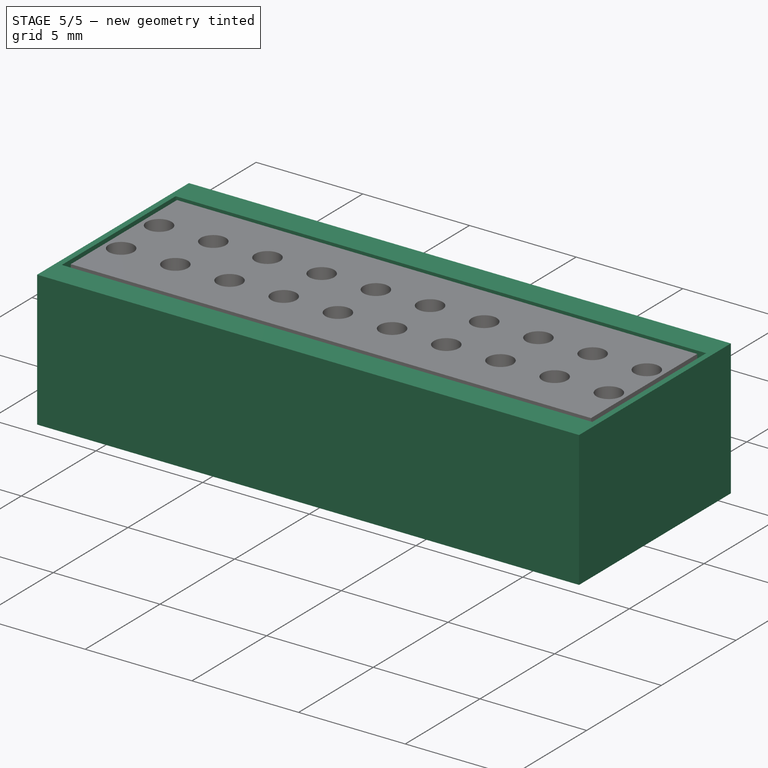
[diagram: stage 5 of 5 — iso view after this stage's code; geometry added in this stage tinted green]
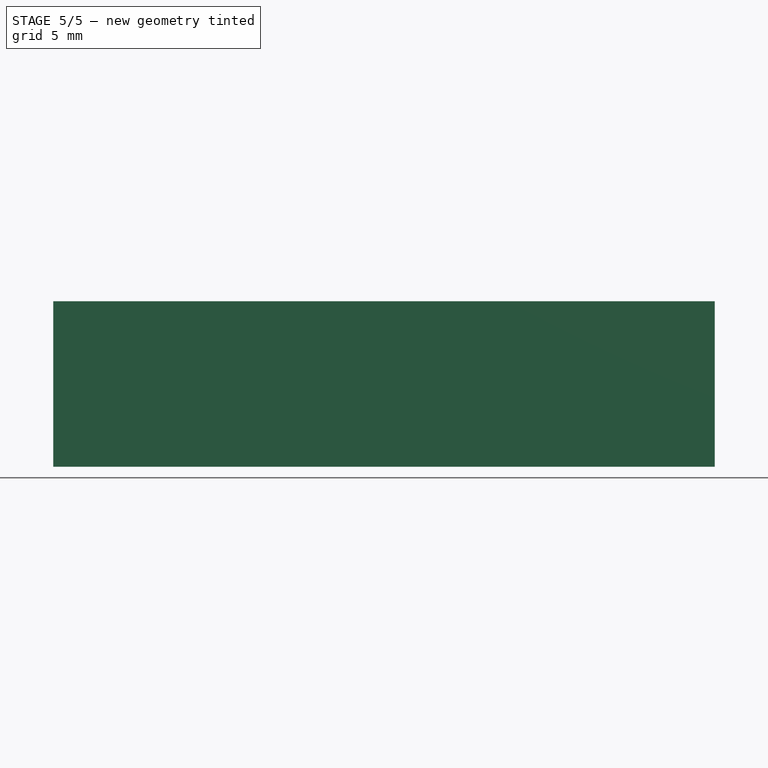
[diagram: stage 5 of 5 — front view after this stage's code; geometry added in this stage tinted green]
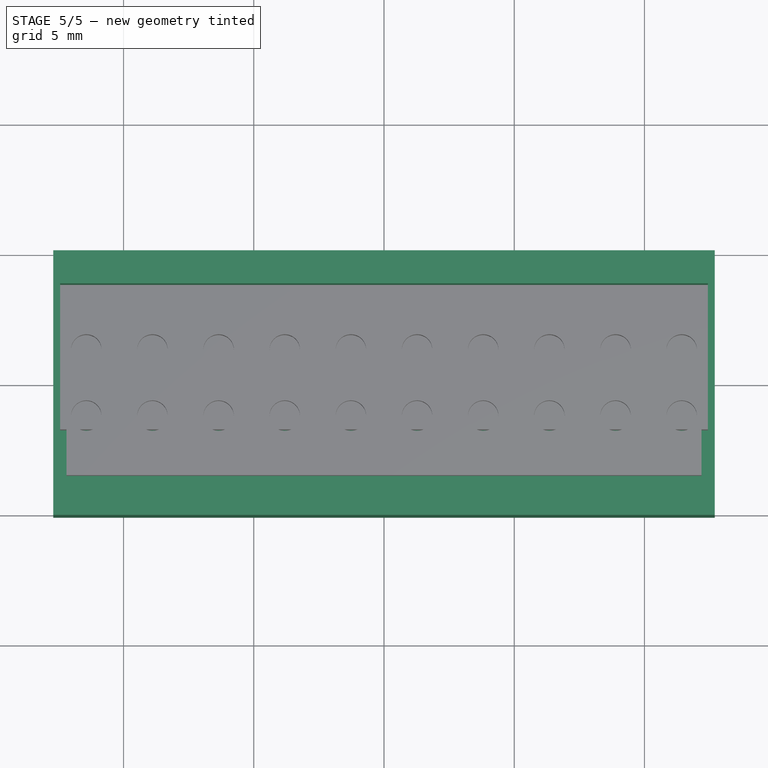
[diagram: stage 5 of 5 — top view after this stage's code; geometry added in this stage tinted green]
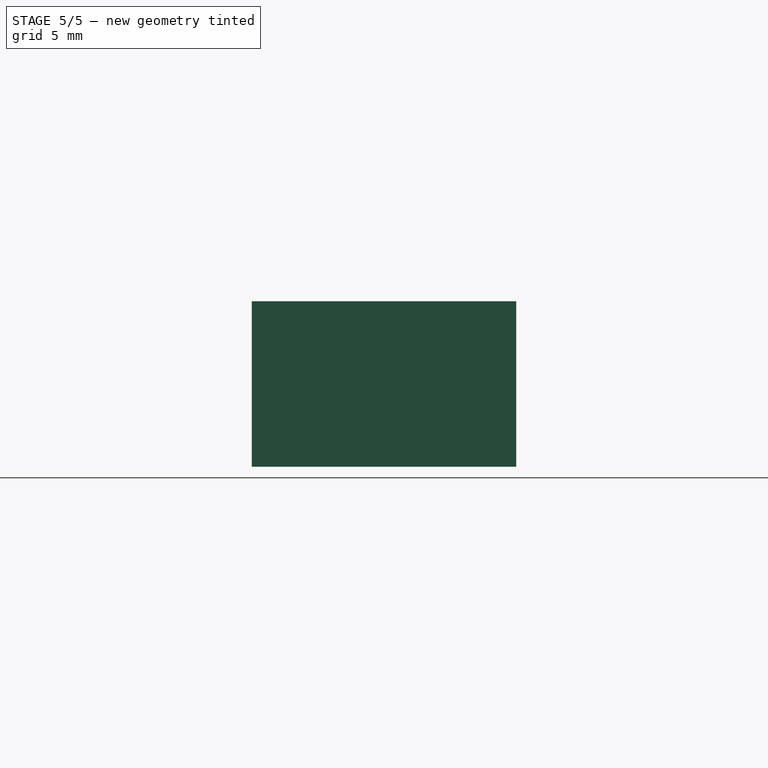
[diagram: stage 5 of 5 — right view after this stage's code; geometry added in this stage tinted green]
FEATURE [Sketcher::SketchObject] Sketch
  MapMode = 5
  Support = -> [XY_Plane]
  sketch-geometry (55):
    g0: LineSegment StartX=-12.7 StartY=5.08 StartZ=0 EndX=12.7 EndY=5.08 EndZ=0
    g1: LineSegment StartX=12.7 StartY=5.08 StartZ=0 EndX=12.7 EndY=-5.08 EndZ=0
    g2: LineSegment StartX=12.7 StartY=-5.08 StartZ=0 EndX=-12.7 EndY=-5.08 EndZ=0
    g3: LineSegment StartX=-12.7 StartY=-5.08 StartZ=0 EndX=-12.7 EndY=5.08 EndZ=0
    g4: LineSegment StartX=-12.4333 StartY=1.778 StartZ=0 EndX=-10.2997 EndY=1.778 EndZ=0
    g5: LineSegment StartX=-10.2997 StartY=1.778 StartZ=0 EndX=-10.2997 EndY=-1.778 EndZ=0
    g6: LineSegment StartX=-10.2997 StartY=-1.778 StartZ=0 EndX=-12.4333 EndY=-1.778 EndZ=0
    g7: LineSegment StartX=-12.4333 StartY=-1.778 StartZ=0 EndX=-12.4333 EndY=1.778 EndZ=0
    g8: LineSegment StartX=-9.90741 StartY=1.778 StartZ=0 EndX=-7.77381 EndY=1.778 EndZ=0
    g9: LineSegment StartX=-7.77381 StartY=1.778 StartZ=0 EndX=-7.77381 EndY=-1.778 EndZ=0
    g10: LineSegment StartX=-7.77381 StartY=-1.778 StartZ=0 EndX=-9.90741 EndY=-1.778 EndZ=0
    g11: LineSegment StartX=-9.90741 StartY=-1.778 StartZ=0 EndX=-9.90741 EndY=1.778 EndZ=0
    g12: LineSegment StartX=-7.38152 StartY=1.778 StartZ=0 EndX=-5.24792 EndY=1.778 EndZ=0
    g13: LineSegment StartX=-5.24792 StartY=1.778 StartZ=0 EndX=-5.24792 EndY=-1.778 EndZ=0
    g14: LineSegment StartX=-5.24792 StartY=-1.778 StartZ=0 EndX=-7.38152 EndY=-1.778 EndZ=0
    g15: LineSegment StartX=-7.38152 StartY=-1.778 StartZ=0 EndX=-7.38152 EndY=1.778 EndZ=0
    g16: LineSegment StartX=-4.85563 StartY=1.778 StartZ=0 EndX=-2.72203 EndY=1.778 EndZ=0
    g17: LineSegment StartX=-2.72203 StartY=1.778 StartZ=0 EndX=-2.72203 EndY=-1.778 EndZ=0
    g18: LineSegment StartX=-2.72203 StartY=-1.778 StartZ=0 EndX=-4.85563 EndY=-1.778 EndZ=0
    g19: LineSegment StartX=-4.85563 StartY=-1.778 StartZ=0 EndX=-4.85563 EndY=1.778 EndZ=0
    g20: LineSegment StartX=-2.32974 StartY=1.778 StartZ=0 EndX=-0.196144 EndY=1.778 EndZ=0
    g21: LineSegment StartX=-0.196144 StartY=1.778 StartZ=0 EndX=-0.196144 EndY=-1.778 EndZ=0
    g22: LineSegment StartX=-0.196144 StartY=-1.778 StartZ=0 EndX=-2.32974 EndY=-1.778 EndZ=0
    g23: LineSegment StartX=-2.32974 StartY=-1.778 StartZ=0 EndX=-2.32974 EndY=1.778 EndZ=0
    g24: LineSegment StartX=0.196144 StartY=1.778 StartZ=0 EndX=2.32974 EndY=1.778 EndZ=0
    g25: LineSegment StartX=2.32974 StartY=1.778 StartZ=0 EndX=2.32974 EndY=-1.778 EndZ=0
    g26: LineSegment StartX=2.32974 StartY=-1.778 StartZ=0 EndX=0.196144 EndY=-1.778 EndZ=0
    g27: LineSegment StartX=0.196144 StartY=-1.778 StartZ=0 EndX=0.196144 EndY=1.778 EndZ=0
    g28: LineSegment StartX=2.72203 StartY=1.778 StartZ=0 EndX=4.85563 EndY=1.778 EndZ=0
    g29: LineSegment StartX=4.85563 StartY=1.778 StartZ=0 EndX=4.85563 EndY=-1.778 EndZ=0
    g30: LineSegment StartX=4.85563 StartY=-1.778 StartZ=0 EndX=2.72203 EndY=-1.778 EndZ=0
    g31: LineSegment StartX=2.72203 StartY=-1.778 StartZ=0 EndX=2.72203 EndY=1.778 EndZ=0
    g32: LineSegment StartX=5.24792 StartY=1.778 StartZ=0 EndX=7.38152 EndY=1.778 EndZ=0
    g33: LineSegment StartX=7.38152 StartY=1.778 StartZ=0 EndX=7.38152 EndY=-1.778 EndZ=0
    g34: LineSegment StartX=7.38152 StartY=-1.778 StartZ=0 EndX=5.24792 EndY=-1.778 EndZ=0
    g35: LineSegment StartX=5.24792 StartY=-1.778 StartZ=0 EndX=5.24792 EndY=1.778 EndZ=0
    g36: LineSegment StartX=7.77381 StartY=1.778 StartZ=0 EndX=9.90741 EndY=1.778 EndZ=0
    g37: LineSegment StartX=9.90741 StartY=1.778 StartZ=0 EndX=9.90741 EndY=-1.778 EndZ=0
    g38: LineSegment StartX=9.90741 StartY=-1.778 StartZ=0 EndX=7.77381 EndY=-1.778 EndZ=0
    g39: LineSegment StartX=7.77381 StartY=-1.778 StartZ=0 EndX=7.77381 EndY=1.778 EndZ=0
    g40: LineSegment StartX=10.2997 StartY=1.778 StartZ=0 EndX=12.4333 EndY=1.778 EndZ=0
    g41: LineSegment StartX=12.4333 StartY=1.778 StartZ=0 EndX=12.4333 EndY=-1.778 EndZ=0
    g42: LineSegment StartX=12.4333 StartY=-1.778 StartZ=0 EndX=10.2997 EndY=-1.778 EndZ=0
    g43: LineSegment StartX=10.2997 StartY=-1.778 StartZ=0 EndX=10.2997 EndY=1.778 EndZ=0
    g44: LineSegment [constr] StartX=-10.2997 StartY=1.778 StartZ=0 EndX=-9.90741 EndY=1.778 EndZ=0
    g45: LineSegment [constr] StartX=-7.77381 StartY=1.778 StartZ=0 EndX=-7.38152 EndY=1.778 EndZ=0
    g46: LineSegment [constr] StartX=-5.24792 StartY=1.778 StartZ=0 EndX=-4.85563 EndY=1.778 EndZ=0
    g47: LineSegment [constr] StartX=-2.72203 StartY=1.778 StartZ=0 EndX=-2.32974 EndY=1.778 EndZ=0
    g48: LineSegment [constr] StartX=-0.196144 StartY=1.778 StartZ=0 EndX=0.196144 EndY=1.778 EndZ=0
    g49: LineSegment [constr] StartX=2.32974 StartY=1.778 StartZ=0 EndX=2.72203 EndY=1.778 EndZ=0
    g50: LineSegment [constr] StartX=4.85563 StartY=1.778 StartZ=0 EndX=5.24792 EndY=1.778 EndZ=0
    g51: LineSegment [constr] StartX=7.38152 StartY=1.778 StartZ=0 EndX=7.77381 EndY=1.778 EndZ=0
    g52: LineSegment [constr] StartX=9.90741 StartY=1.778 StartZ=0 EndX=10.2997 EndY=1.778 EndZ=0
    g53: LineSegment [constr] StartX=12.4333 StartY=1.778 StartZ=0 EndX=12.7 EndY=1.778 EndZ=0
    g54: LineSegment [constr] StartX=-12.4333 StartY=1.778 StartZ=0 EndX=-12.7 EndY=1.778 EndZ=0
  constraints (154):
    c: Coincident(g0,g1)
    c: Coincident(g1,g2)
    c: Coincident(g2,g3)
    c: Coincident(g3,g0)
    c: Horizontal(g2)
    c: Vertical(g1)
    c: DistanceX(g0,g0) = 25.4
    c: Symmetric(g0,g0,g-2)
    c: DistanceY(g3,g3) = 10.16
    c: Symmetric(g0,g2,g-1)
    c: Coincident(g4,g5)
    c: Coincident(g5,g6)
    c: Coincident(g6,g7)
    c: Coincident(g7,g4)
    c: Horizontal(g4)
    c: Horizontal(g6)
    c: Vertical(g5)
    c: Coincident(g8,g9)
    c: Coincident(g9,g10)
    c: Coincident(g10,g11)
    c: Coincident(g11,g8)
    c: Horizontal(g8)
    c: Horizontal(g10)
    c: Vertical(g9)
    c: Vertical(g11)
    c: Coincident(g12,g13)
    c: Coincident(g13,g14)
    c: Coincident(g14,g15)
    c: Coincident(g15,g12)
    c: Horizontal(g12)
    c: Horizontal(g14)
    c: Vertical(g13)
    c: Vertical(g15)
    c: Coincident(g16,g17)
    c: Coincident(g17,g18)
    c: Coincident(g18,g19)
    c: Coincident(g19,g16)
    c: Horizontal(g16)
    c: Horizontal(g18)
    c: Vertical(g17)
    c: Vertical(g19)
    c: Coincident(g20,g21)
    c: Coincident(g21,g22)
    c: Coincident(g22,g23)
    c: Coincident(g23,g20)
    c: Horizontal(g20)
    c: Horizontal(g22)
    c: Vertical(g21)
    c: Vertical(g23)
    c: Coincident(g24,g25)
    c: Coincident(g25,g26)
    c: Coincident(g26,g27)
    c: Coincident(g27,g24)
    c: Horizontal(g24)
    c: Horizontal(g26)
    c: Vertical(g25)
    c: Vertical(g27)
    c: Coincident(g28,g29)
    c: Coincident(g29,g30)
    c: Coincident(g30,g31)
    c: Coincident(g31,g28)
    c: Horizontal(g28)
    c: Horizontal(g30)
    c: Vertical(g29)
    c: Vertical(g31)
    c: Coincident(g32,g33)
    c: Coincident(g33,g34)
    c: Coincident(g34,g35)
    c: Coincident(g35,g32)
    c: Horizontal(g32)
    c: Horizontal(g34)
    c: Vertical(g33)
    c: Vertical(g35)
    c: Coincident(g36,g37)
    c: Coincident(g37,g38)
    c: Coincident(g38,g39)
    c: Coincident(g39,g36)
    c: Horizontal(g36)
    c: Horizontal(g38)
    c: Vertical(g37)
    c: Vertical(g39)
    c: Coincident(g40,g41)
    c: Coincident(g41,g42)
    c: Coincident(g42,g43)
    c: Coincident(g43,g40)
    c: Horizontal(g40)
    c: Horizontal(g42)
    c: Vertical(g41)
    c: Vertical(g43)
    c: Coincident(g44,g4)
    c: Coincident(g44,g8)
    c: Coincident(g45,g8)
    c: Coincident(g45,g12)
    c: Horizontal(g45)
    c: Coincident(g46,g12)
    c: Coincident(g46,g16)
    c: Coincident(g47,g16)
    c: Coincident(g47,g20)
    c: Coincident(g48,g20)
    c: Coincident(g48,g24)
    c: Coincident(g49,g24)
    c: Coincident(g49,g28)
    c: Coincident(g50,g28)
    c: Coincident(g50,g32)
    c: Horizontal(g50)
    c: Coincident(g51,g32)
    c: Coincident(g51,g36)
    c: Coincident(g52,g36)
    c: Coincident(g52,g40)
    c: Coincident(g53,g40)
    c: PointOnObject(g53,g1)
    c: Horizontal(g53)
    c: Horizontal(g52)
    c: Horizontal(g51)
    c: Horizontal(g49)
    c: Horizontal(g48)
    c: Horizontal(g47)
    c: Horizontal(g46)
    c: Horizontal(g44)
    c: Coincident(g54,g4)
    c: PointOnObject(g54,g3)
    c: Horizontal(g54)
    c: Equal(g54,g53)
    c: DistanceX(g4,g4) = 2.1336
    c: Equal(g40,g36)
    c: Equal(g36,g32)
    c: Equal(g32,g28)
    c: Equal(g28,g24)
    c: Equal(g24,g20)
    c: Equal(g20,g16)
    c: Equal(g16,g12)
    c: Equal(g12,g8)
    c: Equal(g8,g4)
    c: Equal(g44,g45)
    c: Equal(g45,g46)
    c: Equal(g46,g47)
    c: Equal(g47,g48)
    c: Equal(g48,g49)
    c: Equal(g49,g50)
    c: Equal(g50,g51)
    c: Equal(g51,g52)
    c: Equal(g43,g39)
    c: Equal(g39,g35)
    c: Equal(g35,g31)
    c: Equal(g31,g27)
    c: Equal(g27,g23)
    c: Equal(g23,g19)
    c: Equal(g19,g15)
    c: Equal(g15,g11)
    c: Equal(g11,g7)
    c: DistanceY(g7,g7) = 3.556
    c: Symmetric(g4,g6,g-1)
    c: DistanceX(g54,g54) = 0.2667
    c: DistanceX(g4,g8) = 2.52589
FEATURE [PartDesign::Pad] Pad
  Length = 6.35
  Length2 = 99.9998
  Profile = -> Sketch
  Type = 0
FEATURE [PartDesign::Body] Body
  Group = -> [Sketch,Pad]
  Origin = -> Origin
  Tip = -> Pad
FEATURE [Sketcher::SketchObject] Sketch001
  AttachmentOffset = pos=(0,0,2.921) rot=(0,0,1;0rad)
  MapMode = 5
  Placement = pos=(0,0,2.921) rot=(0,0,1;0rad)
  Support = -> [XY_Plane001]
  sketch-geometry (34):
    g0: LineSegment StartX=-12.4333 StartY=3.81 StartZ=0 EndX=-11.43 EndY=3.81 EndZ=0
    g1: LineSegment StartX=12.4333 StartY=3.81 StartZ=0 EndX=12.4333 EndY=-3.81 EndZ=0
    g2: LineSegment StartX=12.4333 StartY=-3.81 StartZ=0 EndX=11.43 EndY=-3.81 EndZ=0
    g3: LineSegment StartX=-12.4333 StartY=-3.81 StartZ=0 EndX=-12.4333 EndY=3.81 EndZ=0
    g4: LineSegment [constr] StartX=-11.43 StartY=3.81 StartZ=0 EndX=-11.43 EndY=-3.81 EndZ=0
    g5: LineSegment [constr] StartX=-8.89 StartY=3.81 StartZ=0 EndX=-8.89 EndY=-3.81 EndZ=0
    g6: LineSegment [constr] StartX=-6.35 StartY=3.81 StartZ=0 EndX=-6.35 EndY=-3.81 EndZ=0
    g7: LineSegment [constr] StartX=-3.81 StartY=3.81 StartZ=0 EndX=-3.81 EndY=-3.81 EndZ=0
    g8: LineSegment [constr] StartX=-1.27 StartY=3.81 StartZ=0 EndX=-1.27 EndY=-3.81 EndZ=0
    g9: LineSegment [constr] StartX=1.27 StartY=3.81 StartZ=0 EndX=1.27 EndY=-3.81 EndZ=0
    g10: LineSegment [constr] StartX=3.81 StartY=3.81 StartZ=0 EndX=3.81 EndY=-3.81 EndZ=0
    g11: LineSegment [constr] StartX=6.35 StartY=3.81 StartZ=0 EndX=6.35 EndY=-3.81 EndZ=0
    g12: LineSegment [constr] StartX=8.89 StartY=3.81 StartZ=0 EndX=8.89 EndY=-3.81 EndZ=0
    g13: LineSegment [constr] StartX=11.43 StartY=3.81 StartZ=0 EndX=11.43 EndY=-3.81 EndZ=0
    g14: LineSegment StartX=-11.43 StartY=3.81 StartZ=0 EndX=-8.89 EndY=3.81 EndZ=0
    g15: LineSegment StartX=-8.89 StartY=3.81 StartZ=0 EndX=-6.35 EndY=3.81 EndZ=0
    g16: LineSegment StartX=-6.35 StartY=3.81 StartZ=0 EndX=-3.81 EndY=3.81 EndZ=0
    g17: LineSegment StartX=-3.81 StartY=3.81 StartZ=0 EndX=-1.27 EndY=3.81 EndZ=0
    g18: LineSegment StartX=-1.27 StartY=3.81 StartZ=0 EndX=1.27 EndY=3.81 EndZ=0
    g19: LineSegment StartX=3.81 StartY=3.81 StartZ=0 EndX=6.35 EndY=3.81 EndZ=0
    g20: LineSegment StartX=6.35 StartY=3.81 StartZ=0 EndX=8.89 EndY=3.81 EndZ=0
    g21: LineSegment StartX=11.43 StartY=3.81 StartZ=0 EndX=12.4333 EndY=3.81 EndZ=0
    g22: LineSegment StartX=8.89 StartY=-3.81 StartZ=0 EndX=6.35 EndY=-3.81 EndZ=0
    g23: LineSegment StartX=6.35 StartY=-3.81 StartZ=0 EndX=3.81 EndY=-3.81 EndZ=0
    g24: LineSegment StartX=3.81 StartY=-3.81 StartZ=0 EndX=1.27 EndY=-3.81 EndZ=0
    g25: LineSegment StartX=1.27 StartY=-3.81 StartZ=0 EndX=-1.27 EndY=-3.81 EndZ=0
    g26: LineSegment StartX=-1.27 StartY=-3.81 StartZ=0 EndX=-3.81 EndY=-3.81 EndZ=0
    g27: LineSegment StartX=-3.81 StartY=-3.81 StartZ=0 EndX=-6.35 EndY=-3.81 EndZ=0
    g28: LineSegment StartX=-6.35 StartY=-3.81 StartZ=0 EndX=-8.89 EndY=-3.81 EndZ=0
    g29: LineSegment StartX=-8.89 StartY=-3.81 StartZ=0 EndX=-11.43 EndY=-3.81 EndZ=0
    g30: LineSegment StartX=-11.43 StartY=-3.81 StartZ=0 EndX=-12.4333 EndY=-3.81 EndZ=0
    g31: LineSegment StartX=1.27 StartY=3.81 StartZ=0 EndX=3.81 EndY=3.81 EndZ=0
    g32: LineSegment StartX=8.89 StartY=3.81 StartZ=0 EndX=11.43 EndY=3.81 EndZ=0
    g33: LineSegment StartX=11.43 StartY=-3.81 StartZ=0 EndX=8.89 EndY=-3.81 EndZ=0
  constraints (89):
    c: Coincident(g21,g1)
    c: Coincident(g1,g2)
    c: Coincident(g30,g3)
    c: Coincident(g3,g0)
    c: Vertical(g1)
    c: DistanceX(g0,g21) = 24.8666
    c: Symmetric(g0,g21,g-2)
    c: DistanceY(g3,g3) = 7.62
    c: Symmetric(g0,g30,g-1)
    c: Vertical(g5)
    c: Vertical(g6)
    c: Vertical(g7)
    c: Vertical(g8)
    c: Vertical(g9)
    c: Vertical(g11)
    c: Vertical(g12)
    c: Vertical(g13)
    c: Equal(g4,g5)
    c: Equal(g5,g6)
    c: Equal(g6,g7)
    c: Equal(g7,g8)
    c: Equal(g8,g9)
    c: Equal(g9,g10)
    c: Equal(g10,g11)
    c: Equal(g11,g12)
    c: Equal(g12,g13)
    c: DistanceY(g4,g4) = 7.62
    c: DistanceX(g4,g5) = 2.54
    c: Symmetric(g4,g4,g-1)
    c: Horizontal(g18)
    c: Coincident(g0,g4)
    c: Coincident(g0,g14)
    c: Coincident(g5,g14)
    c: Coincident(g5,g15)
    c: Coincident(g6,g15)
    c: Coincident(g6,g16)
    c: Coincident(g7,g16)
    c: Coincident(g7,g17)
    c: Coincident(g8,g17)
    c: Coincident(g8,g18)
    c: Coincident(g9,g18)
    c: Coincident(g9,g31)
    c: Coincident(g10,g19)
    c: Coincident(g10,g31)
    c: Coincident(g11,g19)
    c: Coincident(g11,g20)
    c: Coincident(g12,g20)
    c: Coincident(g12,g32)
    c: Coincident(g13,g21)
    c: Coincident(g13,g32)
    c: Coincident(g2,g13)
    c: Coincident(g2,g33)
    c: Coincident(g12,g22)
    c: Coincident(g12,g33)
    c: Coincident(g11,g22)
    c: Coincident(g11,g23)
    c: Coincident(g10,g23)
    c: Coincident(g10,g24)
    c: Coincident(g9,g24)
    c: Coincident(g9,g25)
    c: Coincident(g8,g25)
    c: Coincident(g8,g26)
    c: Coincident(g7,g26)
    c: Coincident(g7,g27)
    c: Coincident(g6,g27)
    c: Coincident(g6,g28)
    c: Coincident(g5,g28)
    c: Coincident(g5,g29)
    c: Coincident(g4,g29)
    c: Coincident(g4,g30)
    c: Horizontal(g2)
    c: Horizontal(g33)
    c: Horizontal(g27)
    c: Horizontal(g26)
    c: Horizontal(g24)
    c: Horizontal(g23)
    c: Horizontal(g28)
    c: Horizontal(g29)
    c: Horizontal(g21)
    c: Equal(g14,g15)
    c: Equal(g15,g16)
    c: Equal(g16,g17)
    c: Equal(g17,g18)
    c: Equal(g18,g31)
    c: Equal(g31,g19)
    c: Equal(g19,g20)
    c: Equal(g20,g32)
    c: Equal(g0,g21)
    c: Vertical(g10)
FEATURE [PartDesign::Pad] Pad001
  Length = 5.08
  Length2 = 99.9998
  Profile = -> Sketch001
  Type = 0
FEATURE [PartDesign::Body] Body001
  Group = -> [Sketch001,Pad001]
  Origin = -> Origin001
  Tip = -> Pad001
FEATURE [Part::Cut] Cut  label="body"
  Base = -> Body
  Tool = -> Body001
FEATURE [Part::Cut] Cut002  label="plug"
  Base = -> Cut001
  Tool = -> Body004
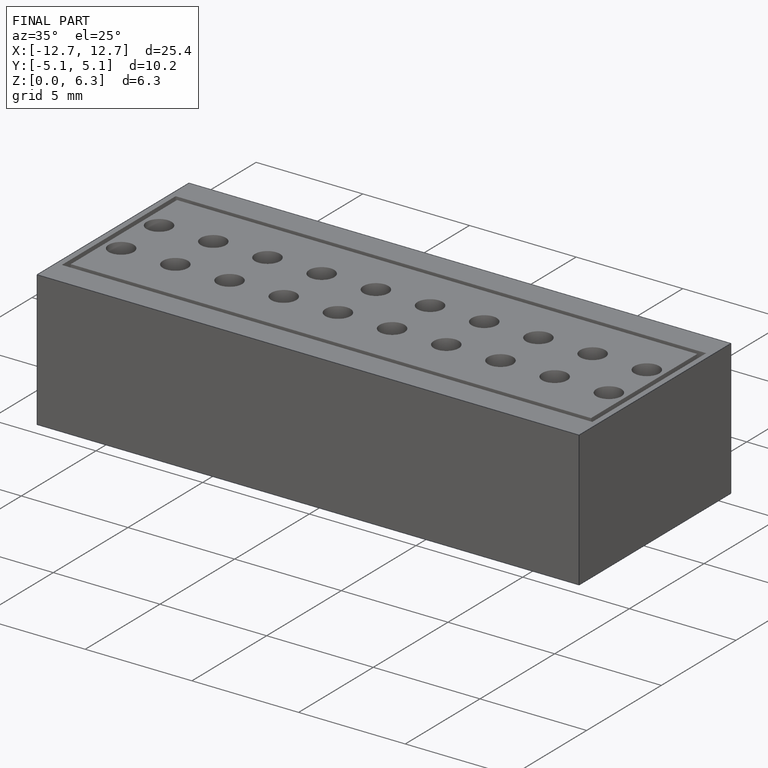
[diagram: finished part — iso view with bounding-box wireframe]
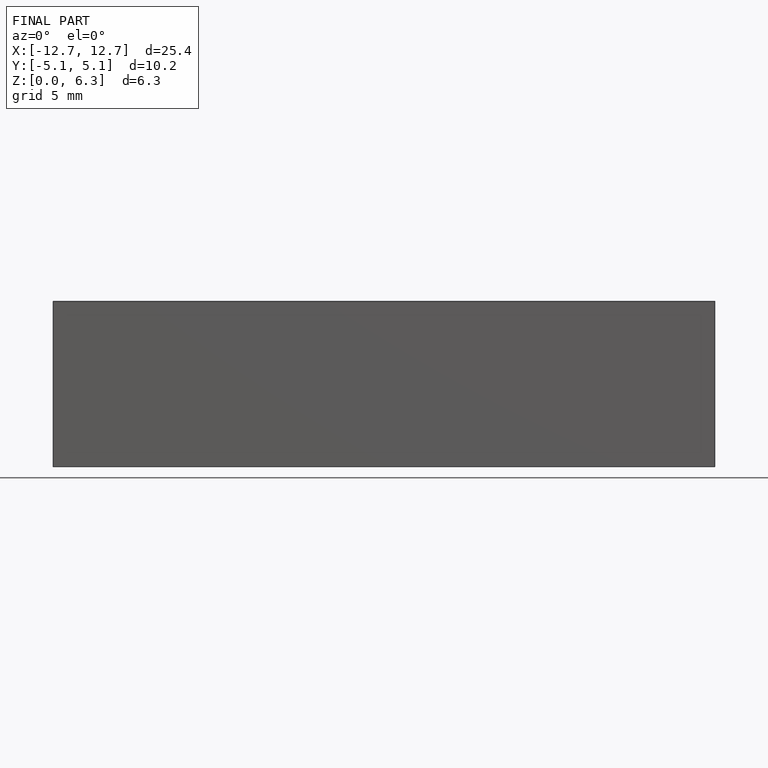
[diagram: finished part — front view with bounding-box wireframe]
